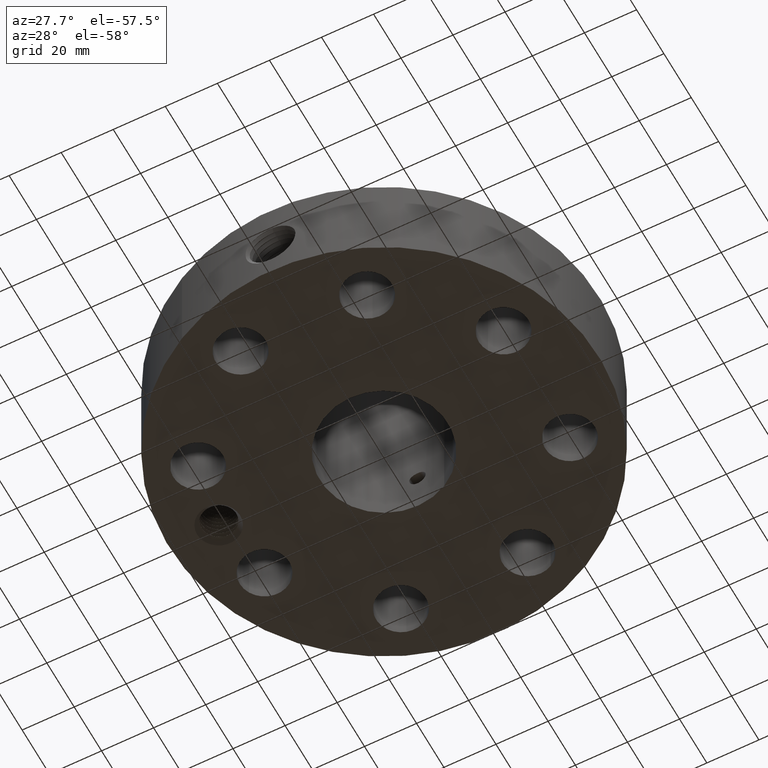
[diagram: clean part render]
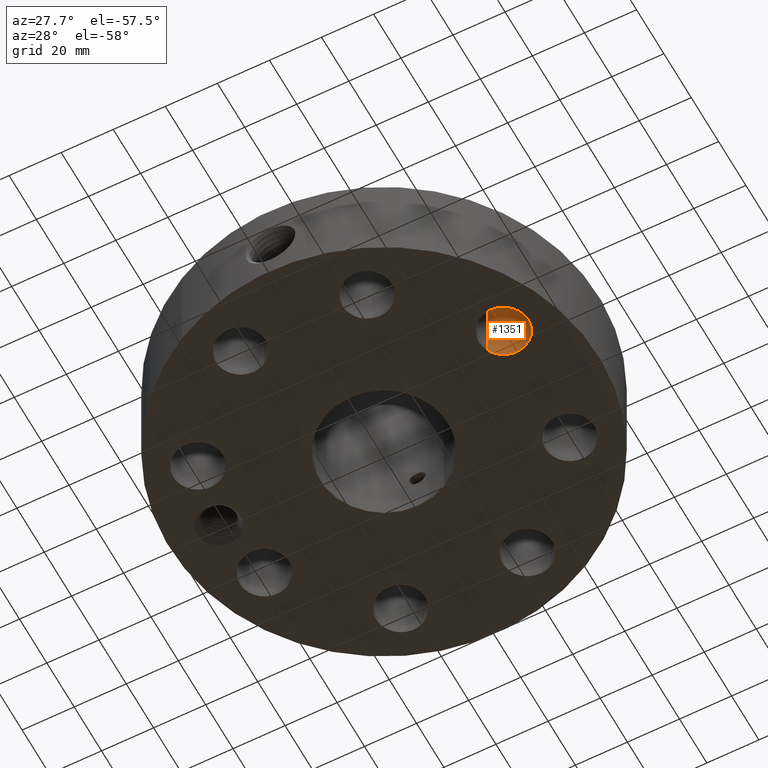
[diagram: same view with one face highlighted and labeled with its STEP entity id]
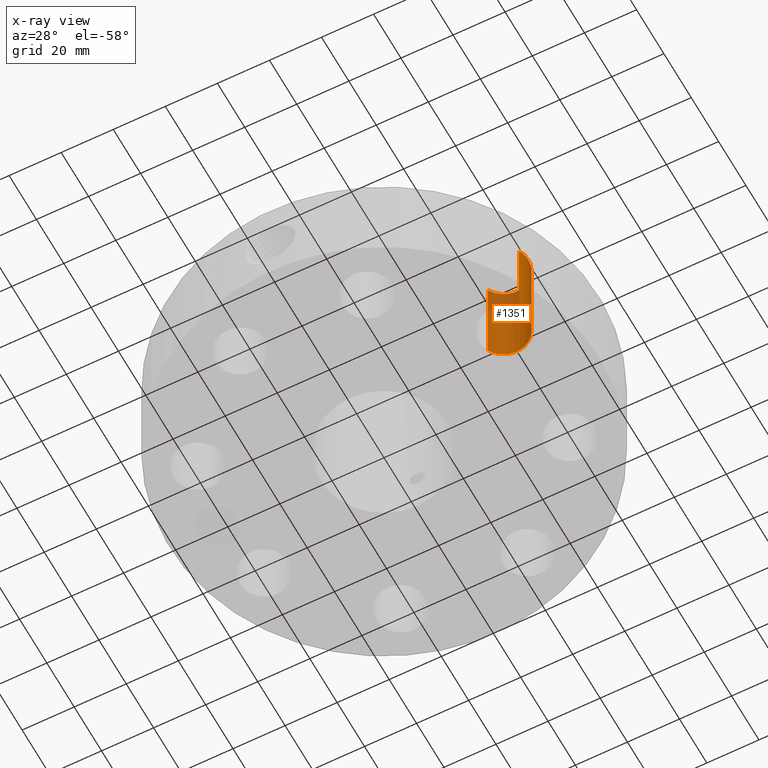
[diagram: x-ray of the same camera — body ghosted, the highlighted face saturated]
A machine part, auxiliary view. The second image highlights one B-rep face of the part: STEP entity #1351.
The next image is the same camera in x-ray: the body ghosted, the highlighted face saturated — about 17% of this face is hidden behind the body in this view.
In plain terms, the highlighted cylindrical surface (edge-blend (fillet) strip) has radius 9.525 mm, axis along (0, -0, -1).
Its self-contained STEP definition (entity closure, byte-faithful):
#247=AXIS2_PLACEMENT_3D('Circle Axis2P3D',#245,#246,$) ;
#569=AXIS2_PLACEMENT_3D('Circle Axis2P3D',#567,#568,$) ;
#1326=AXIS2_PLACEMENT_3D('Cylinder Axis2P3D',#1323,#1324,#1325) ;
#240=CARTESIAN_POINT('Vertex',(2.638792292,-1.13649315789,0.250000000001)) ;
#242=CARTESIAN_POINT('Vertex',(1.98060537058,-0.776924003939,0.250000000001)) ;
#245=CARTESIAN_POINT('Axis2P3D Location',(2.30969883129,-0.956708580917,0.250000000001)) ;
#567=CARTESIAN_POINT('Axis2P3D Location',(2.30969883129,-0.956708580917,1.75000000001)) ;
#571=CARTESIAN_POINT('Vertex',(1.98060537058,-0.776924003939,1.75000000001)) ;
#573=CARTESIAN_POINT('Vertex',(2.638792292,-1.13649315789,1.75000000001)) ;
#1323=CARTESIAN_POINT('Axis2P3D Location',(2.30969883129,-0.956708580917,1.74606299213)) ;
#1328=CARTESIAN_POINT('Line Origine',(2.638792292,-1.13649315789,1.)) ;
#1333=CARTESIAN_POINT('Line Origine',(1.98060537058,-0.776924003939,1.)) ;
#246=DIRECTION('Axis2P3D Direction',(0.,0.,-0.0393700787402)) ;
#568=DIRECTION('Axis2P3D Direction',(0.,0.,-0.0393700787402)) ;
#1324=DIRECTION('Axis2P3D Direction',(0.,-0.,-0.0393700787402)) ;
#1325=DIRECTION('Axis2P3D XDirection',(-0.0345504945626,0.0188750212049,0.)) ;
#1329=DIRECTION('Vector Direction',(0.,0.,-0.0393700787402)) ;
#1334=DIRECTION('Vector Direction',(0.,0.,-0.0393700787402)) ;
#1330=VECTOR('Line Direction',#1329,0.0393700787402) ;
#1335=VECTOR('Line Direction',#1334,0.0393700787402) ;
#1346=ORIENTED_EDGE('',*,*,#1337,.F.) ;
#1347=ORIENTED_EDGE('',*,*,#249,.T.) ;
#1348=ORIENTED_EDGE('',*,*,#1332,.T.) ;
#1349=ORIENTED_EDGE('',*,*,#575,.F.) ;
#1351=ADVANCED_FACE('PartBody',(#1350),#1327,.F.) ;
#248=CIRCLE('generated circle',#247,0.375000000001) ;
#570=CIRCLE('generated circle',#569,0.375000000001) ;
#1327=CYLINDRICAL_SURFACE('generated cylinder',#1326,0.375000000001) ;
#249=EDGE_CURVE('',#243,#241,#248,.T.) ;
#575=EDGE_CURVE('',#572,#574,#570,.T.) ;
#1332=EDGE_CURVE('',#241,#574,#1331,.F.) ;
#1337=EDGE_CURVE('',#243,#572,#1336,.F.) ;
#1345=EDGE_LOOP('',(#1346,#1347,#1348,#1349)) ;
#1350=FACE_OUTER_BOUND('',#1345,.T.) ;
#1331=LINE('Line',#1328,#1330) ;
#1336=LINE('Line',#1333,#1335) ;
#241=VERTEX_POINT('',#240) ;
#243=VERTEX_POINT('',#242) ;
#572=VERTEX_POINT('',#571) ;
#574=VERTEX_POINT('',#573) ;